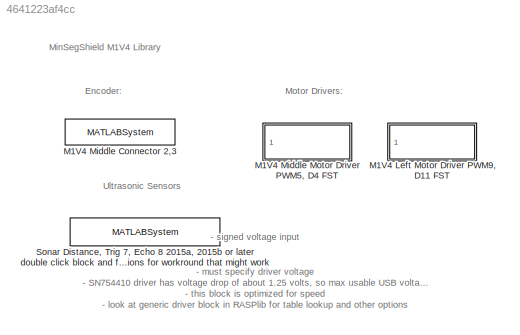
MODEL slx_4641223af4cc
KIND library
CONFIG AbsTol = auto
CONFIG FixedStep = auto
CONFIG MaxStep = auto
CONFIG MinStep = auto
CONFIG RelTol = 1e-3
CONFIG SampleTimeConstraint = Unconstrained
CONFIG Solver = ode45
CONFIG SolverMode = Auto
CONFIG SolverName = ode45
CONFIG StartTime = 0.0
CONFIG StopTime = 10.0
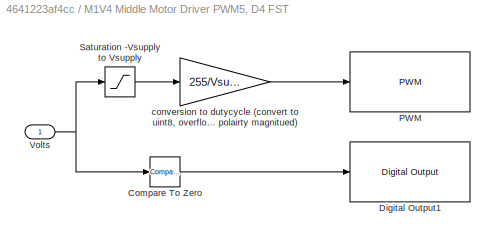
BLOCK [SubSystem] M1V4  Middle Motor Driver PWM5, D4 FST
  Ports = [1]
  RequestExecContextInheritance = off
BLOCK [Reference] M1V4  Middle Motor Driver PWM5, D4 FST/Compare To Zero  REF=simulink/Logic and Bit
Operations/Compare
To Zero
  OutDataTypeStr = boolean
  Ports = [1, 1]
  SourceBlock = simulink/Logic and Bit\nOperations/Compare\nTo Zero
  SourceType = Compare To Zero
  ZeroCross = on
  relop = <
BLOCK [Reference] M1V4  Middle Motor Driver PWM5, D4 FST/Digital Output1  REF=arduinolib/Digital Output
  Ports = [1]
  SourceBlock = arduinolib/Digital Output
  SourceType = Arduino Digital Output
  blockPlatform = arduino
  pinNumber = 4
BLOCK [Reference] M1V4  Middle Motor Driver PWM5, D4 FST/PWM  REF=arduinolib/PWM
  Ports = [1]
  SourceBlock = arduinolib/PWM
  SourceType = Arduino PWM
  blockPlatform = arduino
  pinNumber = 5
BLOCK [Saturate] M1V4  Middle Motor Driver PWM5, D4 FST/Saturation -Vsupply to Vsupply
  InputPortMap = u0
  LowerLimit = -Vsupply
  OutDataTypeStr = single
  Ports = [1, 1]
  UpperLimit = Vsupply
BLOCK [Inport] M1V4  Middle Motor Driver PWM5, D4 FST/Volts
  IconDisplay = Port number
BLOCK [Gain] M1V4  Middle Motor Driver PWM5, D4 FST/conversion to dutycycle (convert to uint8, overflow will provide reverse polairty magnitued)
  Gain = 255/Vsupply
  OutDataTypeStr = uint8
  ParamDataTypeStr = Inherit: Inherit via internal rule
  SaturateOnIntegerOverflow = off
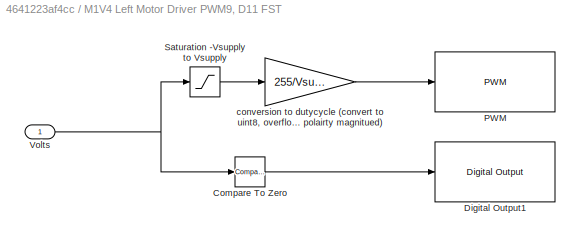
BLOCK [SubSystem] M1V4 Left Motor Driver PWM9, D11 FST
  Ports = [1]
  RequestExecContextInheritance = off
BLOCK [Reference] M1V4 Left Motor Driver PWM9, D11 FST/Compare To Zero  REF=simulink/Logic and Bit
Operations/Compare
To Zero
  OutDataTypeStr = boolean
  Ports = [1, 1]
  SourceBlock = simulink/Logic and Bit\nOperations/Compare\nTo Zero
  SourceType = Compare To Zero
  ZeroCross = on
  relop = <
BLOCK [Reference] M1V4 Left Motor Driver PWM9, D11 FST/Digital Output1  REF=arduinolib/Digital Output
  Ports = [1]
  SourceBlock = arduinolib/Digital Output
  SourceType = Arduino Digital Output
  blockPlatform = arduino
  pinNumber = 11
BLOCK [Reference] M1V4 Left Motor Driver PWM9, D11 FST/PWM  REF=arduinolib/PWM
  Ports = [1]
  SourceBlock = arduinolib/PWM
  SourceType = Arduino PWM
  blockPlatform = arduino
  pinNumber = 9
BLOCK [Saturate] M1V4 Left Motor Driver PWM9, D11 FST/Saturation -Vsupply to Vsupply
  InputPortMap = u0
  LowerLimit = -Vsupply
  OutDataTypeStr = single
  Ports = [1, 1]
  UpperLimit = Vsupply
BLOCK [Inport] M1V4 Left Motor Driver PWM9, D11 FST/Volts
  IconDisplay = Port number
BLOCK [Gain] M1V4 Left Motor Driver PWM9, D11 FST/conversion to dutycycle (convert to uint8, overflow will provide reverse polairty magnitued)
  Gain = 255/Vsupply
  OutDataTypeStr = uint8
  ParamDataTypeStr = Inherit: Inherit via internal rule
  SaturateOnIntegerOverflow = off
BLOCK [MATLABSystem] M1V4 Middle Connector 2,3
  Encoder = 0
  MaskDisplay = disp('soEncoder');\nport_label('output',1,'y');
  MaskType = Encoder_arduino
  PinA = 3
  PinB = 2
  Ports = [0, 1]
  System = Encoder_arduino
BLOCK [MATLABSystem] Sonar Distance, Trig 7, Echo 8 2015a, 2015b or later double click block and follow instructions for workround that might work
  EchoPin = 8
  MaskDisplay = disp('soHCSR04Sonar');\nport_label('output',1,'d_cm');
  MaskType = soHCSR04Sonar
  Ports = [0, 1]
  Sonar = 1
  System = soHCSR04Sonar
  TrigPin = 7
ANNOTATION (root): - signed voltage input - must specify driver voltage - SN754410 driver has voltage drop of about 1.25 volts, so max usable USB voltage is about 3.25 volts - this block is optimized for speed - look at generic driver block in RASPlib for table lookup and other options
ANNOTATION (root): MinSegShield M1V4 Library
ANNOTATION (root): Encoder:
ANNOTATION (root): Motor Drivers:
ANNOTATION (root): Ultrasonic Sensors
LINE M1V4  Middle Motor Driver PWM5, D4 FST/Compare To Zero:1 -> M1V4  Middle Motor Driver PWM5, D4 FST/Digital Output1:1
LINE M1V4  Middle Motor Driver PWM5, D4 FST/Saturation -Vsupply to Vsupply:1 -> M1V4  Middle Motor Driver PWM5, D4 FST/conversion to dutycycle (convert to uint8, overflow will provide reverse polairty magnitued):1
NET M1V4  Middle Motor Driver PWM5, D4 FST/Volts:1 -> M1V4  Middle Motor Driver PWM5, D4 FST/Compare To Zero:1, M1V4  Middle Motor Driver PWM5, D4 FST/Saturation -Vsupply to Vsupply:1
LINE M1V4  Middle Motor Driver PWM5, D4 FST/conversion to dutycycle (convert to uint8, overflow will provide reverse polairty magnitued):1 -> M1V4  Middle Motor Driver PWM5, D4 FST/PWM:1
LINE M1V4 Left Motor Driver PWM9, D11 FST/Compare To Zero:1 -> M1V4 Left Motor Driver PWM9, D11 FST/Digital Output1:1
LINE M1V4 Left Motor Driver PWM9, D11 FST/Saturation -Vsupply to Vsupply:1 -> M1V4 Left Motor Driver PWM9, D11 FST/conversion to dutycycle (convert to uint8, overflow will provide reverse polairty magnitued):1
NET M1V4 Left Motor Driver PWM9, D11 FST/Volts:1 -> M1V4 Left Motor Driver PWM9, D11 FST/Compare To Zero:1, M1V4 Left Motor Driver PWM9, D11 FST/Saturation -Vsupply to Vsupply:1
LINE M1V4 Left Motor Driver PWM9, D11 FST/conversion to dutycycle (convert to uint8, overflow will provide reverse polairty magnitued):1 -> M1V4 Left Motor Driver PWM9, D11 FST/PWM:1
note: NET lines group one-source signal fan-out (src -> all destinations, sorted); 1:1 wires keep LINE
